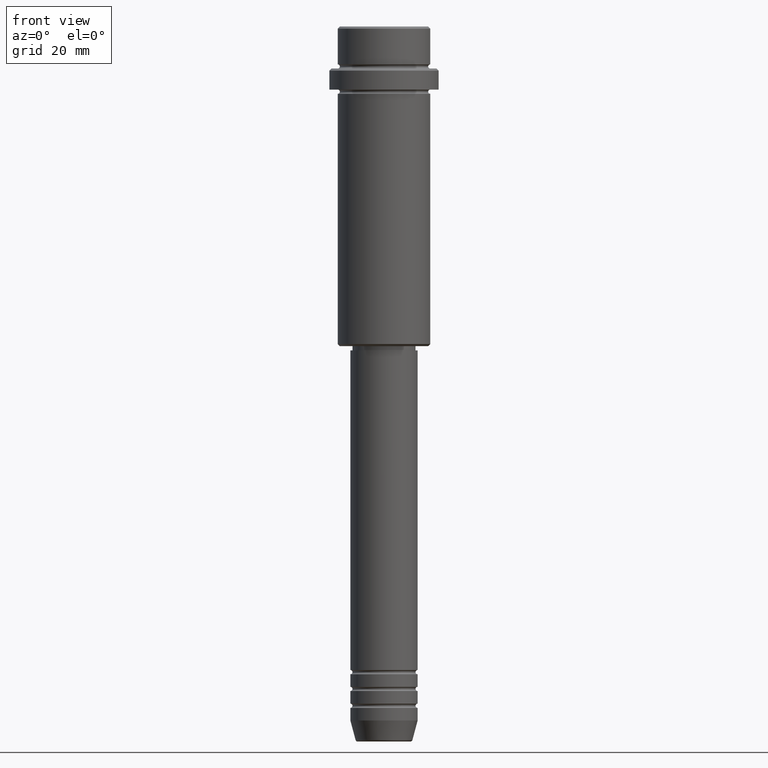
[diagram: clean part render]
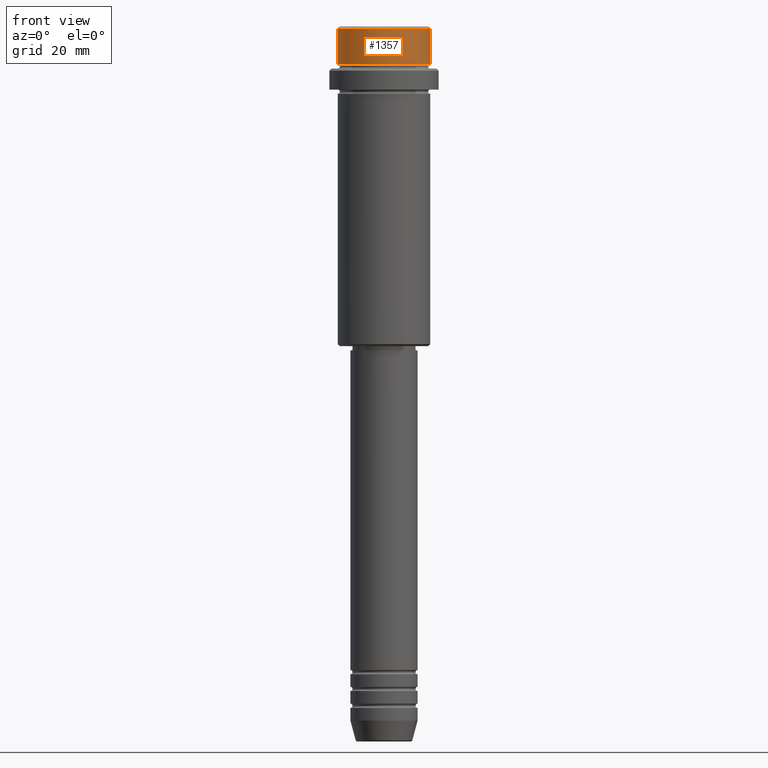
[diagram: same view with one face highlighted and labeled with its STEP entity id]
A machine part, front view. The second image highlights one B-rep face of the part: STEP entity #1357.
In plain terms, the highlighted cylindrical surface (partial cylindrical patch) has radius 11 mm, axis along (-0, -0, 1).
Its self-contained STEP definition (entity closure, byte-faithful):
#11 = VECTOR ( 'NONE', #993, 1000.000000000000000 ) ;
#25 = EDGE_CURVE ( 'NONE', #695, #316, #1004, .T. ) ;
#38 = CARTESIAN_POINT ( 'NONE',  ( 10.99999999999997158, 0.000000000000000000, -9.000000000000000000 ) ) ;
#97 = FACE_OUTER_BOUND ( 'NONE', #585, .T. ) ;
#121 = ORIENTED_EDGE ( 'NONE', *, *, #236, .T. ) ;
#124 = CARTESIAN_POINT ( 'NONE',  ( 0.000000000000000000, 0.000000000000000000, -0.4999999999999882871 ) ) ;
#134 = CARTESIAN_POINT ( 'NONE',  ( -10.99999999999998757, 1.347111479062086827E-15, 0.000000000000000000 ) ) ;
#137 = VERTEX_POINT ( 'NONE', #1216 ) ;
#173 = CIRCLE ( 'NONE', #1180, 10.99999999999998757 ) ;
#194 = VECTOR ( 'NONE', #454, 1000.000000000000000 ) ;
#228 = EDGE_CURVE ( 'NONE', #695, #1345, #987, .T. ) ;
#236 = EDGE_CURVE ( 'NONE', #316, #137, #875, .T. ) ;
#316 = VERTEX_POINT ( 'NONE', #38 ) ;
#323 = DIRECTION ( 'NONE',  ( 1.000000000000000000, 0.000000000000000000, 0.000000000000000000 ) ) ;
#416 = CARTESIAN_POINT ( 'NONE',  ( 0.000000000000000000, 0.000000000000000000, -9.000000000000000000 ) ) ;
#433 = DIRECTION ( 'NONE',  ( -0.000000000000000000, -0.000000000000000000, 1.000000000000000000 ) ) ;
#454 = DIRECTION ( 'NONE',  ( -0.000000000000000000, -0.000000000000000000, 1.000000000000000000 ) ) ;
#474 = ORIENTED_EDGE ( 'NONE', *, *, #228, .F. ) ;
#479 = ORIENTED_EDGE ( 'NONE', *, *, #1249, .T. ) ;
#534 = DIRECTION ( 'NONE',  ( 1.000000000000000000, 0.000000000000000000, 0.000000000000000000 ) ) ;
#585 = EDGE_LOOP ( 'NONE', ( #474, #1014, #121, #479 ) ) ;
#661 = DIRECTION ( 'NONE',  ( 1.000000000000000000, 0.000000000000000000, 0.000000000000000000 ) ) ;
#669 = CARTESIAN_POINT ( 'NONE',  ( 10.99999999999998757, 0.000000000000000000, 0.000000000000000000 ) ) ;
#695 = VERTEX_POINT ( 'NONE', #997 ) ;
#740 = CARTESIAN_POINT ( 'NONE',  ( 0.000000000000000000, 0.000000000000000000, 0.000000000000000000 ) ) ;
#795 = AXIS2_PLACEMENT_3D ( 'NONE', #416, #1182, #534 ) ;
#807 = CARTESIAN_POINT ( 'NONE',  ( -10.99999999999998757, 1.347111479062086827E-15, -0.4999999999999882871 ) ) ;
#875 = LINE ( 'NONE', #669, #11 ) ;
#987 = LINE ( 'NONE', #134, #194 ) ;
#993 = DIRECTION ( 'NONE',  ( -0.000000000000000000, -0.000000000000000000, 1.000000000000000000 ) ) ;
#997 = CARTESIAN_POINT ( 'NONE',  ( -10.99999999999997158, 1.347111479062085841E-15, -9.000000000000000000 ) ) ;
#1004 = CIRCLE ( 'NONE', #795, 10.99999999999997158 ) ;
#1014 = ORIENTED_EDGE ( 'NONE', *, *, #25, .T. ) ;
#1170 = CYLINDRICAL_SURFACE ( 'NONE', #1381, 10.99999999999998757 ) ;
#1180 = AXIS2_PLACEMENT_3D ( 'NONE', #124, #1317, #661 ) ;
#1182 = DIRECTION ( 'NONE',  ( -0.000000000000000000, -0.000000000000000000, 1.000000000000000000 ) ) ;
#1216 = CARTESIAN_POINT ( 'NONE',  ( 10.99999999999998757, 0.000000000000000000, -0.4999999999999882871 ) ) ;
#1249 = EDGE_CURVE ( 'NONE', #137, #1345, #173, .T. ) ;
#1317 = DIRECTION ( 'NONE',  ( 0.000000000000000000, 0.000000000000000000, -1.000000000000000000 ) ) ;
#1345 = VERTEX_POINT ( 'NONE', #807 ) ;
#1357 = ADVANCED_FACE ( 'NONE', ( #97 ), #1170, .T. ) ;
#1381 = AXIS2_PLACEMENT_3D ( 'NONE', #740, #433, #323 ) ;